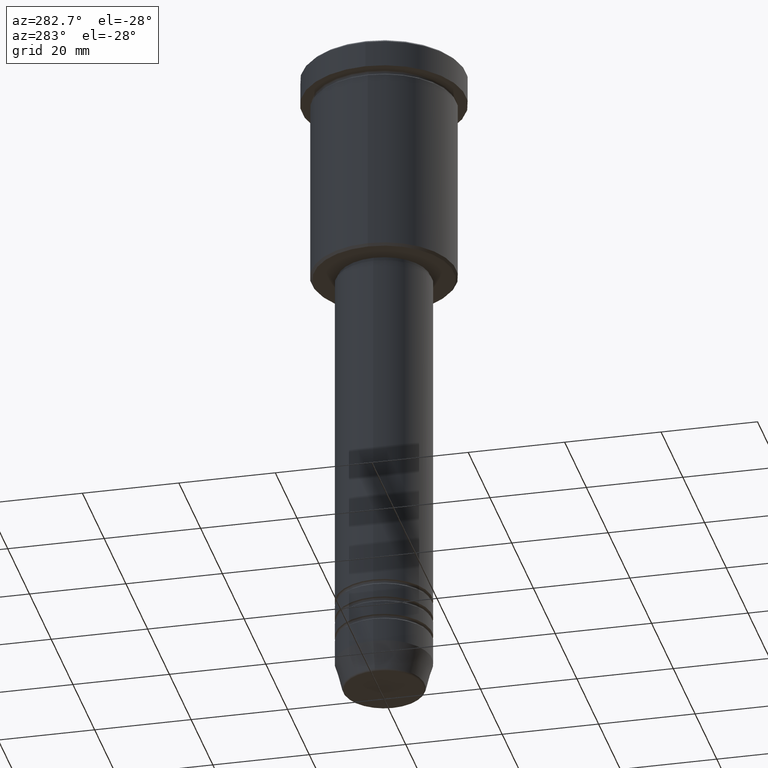
[diagram: clean part render]
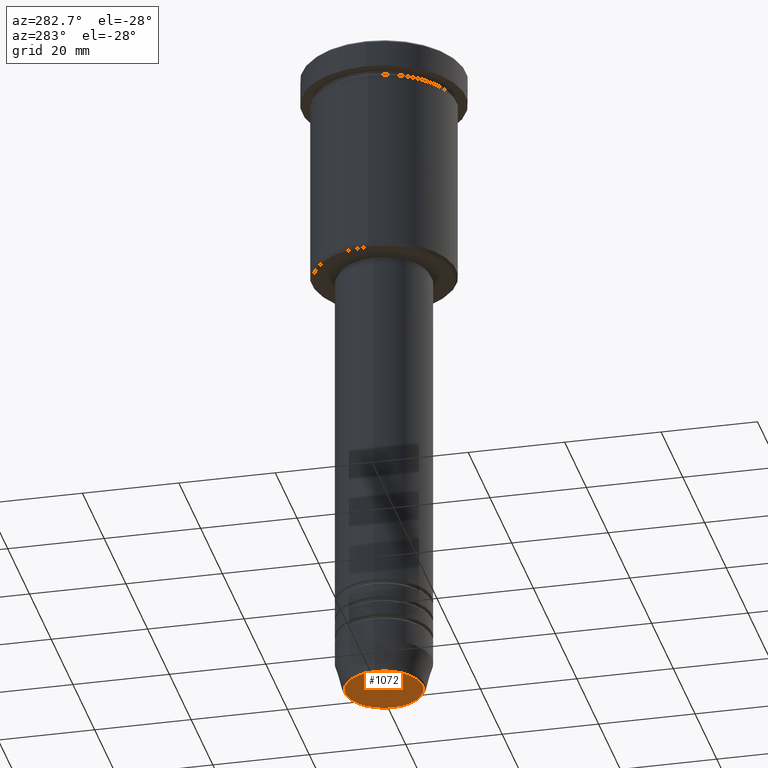
[diagram: same view with one face highlighted and labeled with its STEP entity id]
A machine part, auxiliary view. The second image highlights one B-rep face of the part: STEP entity #1072.
In plain terms, the highlighted planar face has unit normal (0, -0, 1).
Its self-contained STEP definition (entity closure, byte-faithful):
#21 = CARTESIAN_POINT ( 'NONE',  ( 0.000000000000000000, 0.000000000000000000, -140.0000000000000000 ) ) ;
#130 = CARTESIAN_POINT ( 'NONE',  ( -8.008641351423783306, 1.010348648938493566E-15, -140.0000000000000000 ) ) ;
#383 = DIRECTION ( 'NONE',  ( 1.000000000000000000, 0.000000000000000000, 0.000000000000000000 ) ) ;
#404 = CARTESIAN_POINT ( 'NONE',  ( 0.000000000000000000, 0.000000000000000000, -140.0000000000000000 ) ) ;
#449 = VERTEX_POINT ( 'NONE', #130 ) ;
#474 = EDGE_CURVE ( 'NONE', #449, #947, #749, .T. ) ;
#475 = PLANE ( 'NONE',  #718 ) ;
#514 = EDGE_LOOP ( 'NONE', ( #1150, #520 ) ) ;
#520 = ORIENTED_EDGE ( 'NONE', *, *, #474, .T. ) ;
#563 = DIRECTION ( 'NONE',  ( 0.000000000000000000, -0.000000000000000000, 1.000000000000000000 ) ) ;
#567 = DIRECTION ( 'NONE',  ( 0.000000000000000000, 0.000000000000000000, -1.000000000000000000 ) ) ;
#574 = AXIS2_PLACEMENT_3D ( 'NONE', #404, #1148, #687 ) ;
#647 = CARTESIAN_POINT ( 'NONE',  ( 8.008641351423783306, 0.000000000000000000, -140.0000000000000000 ) ) ;
#687 = DIRECTION ( 'NONE',  ( 1.000000000000000000, 0.000000000000000000, 0.000000000000000000 ) ) ;
#718 = AXIS2_PLACEMENT_3D ( 'NONE', #21, #563, #383 ) ;
#749 = CIRCLE ( 'NONE', #574, 8.008641351423783306 ) ;
#819 = FACE_OUTER_BOUND ( 'NONE', #514, .T. ) ;
#922 = EDGE_CURVE ( 'NONE', #947, #449, #1067, .T. ) ;
#947 = VERTEX_POINT ( 'NONE', #647 ) ;
#1030 = DIRECTION ( 'NONE',  ( 1.000000000000000000, 0.000000000000000000, 0.000000000000000000 ) ) ;
#1067 = CIRCLE ( 'NONE', #1146, 8.008641351423783306 ) ;
#1072 = ADVANCED_FACE ( 'NONE', ( #819 ), #475, .F. ) ;
#1120 = CARTESIAN_POINT ( 'NONE',  ( 0.000000000000000000, 0.000000000000000000, -140.0000000000000000 ) ) ;
#1146 = AXIS2_PLACEMENT_3D ( 'NONE', #1120, #567, #1030 ) ;
#1148 = DIRECTION ( 'NONE',  ( 0.000000000000000000, 0.000000000000000000, -1.000000000000000000 ) ) ;
#1150 = ORIENTED_EDGE ( 'NONE', *, *, #922, .T. ) ;